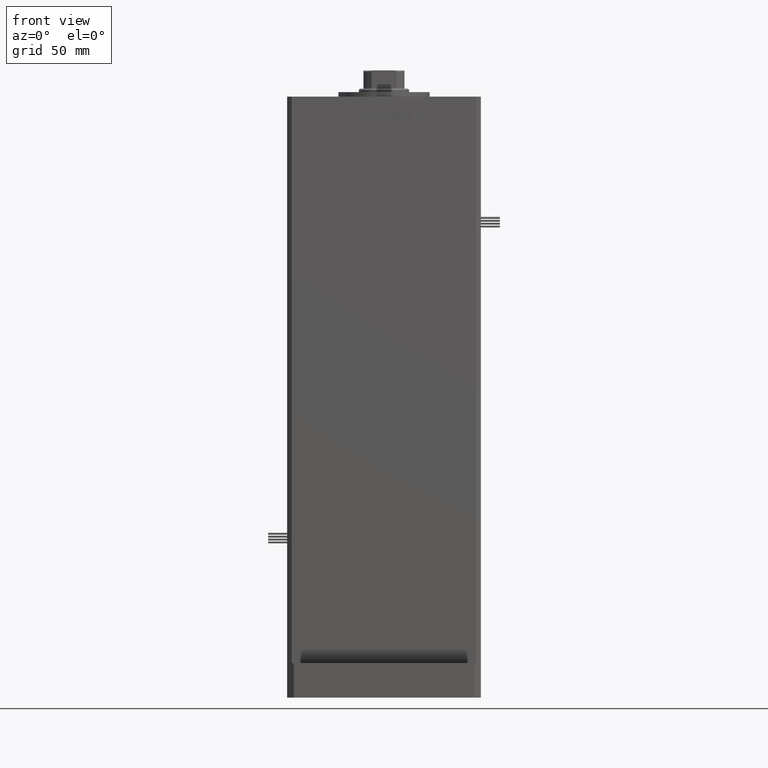
[diagram: clean part render]
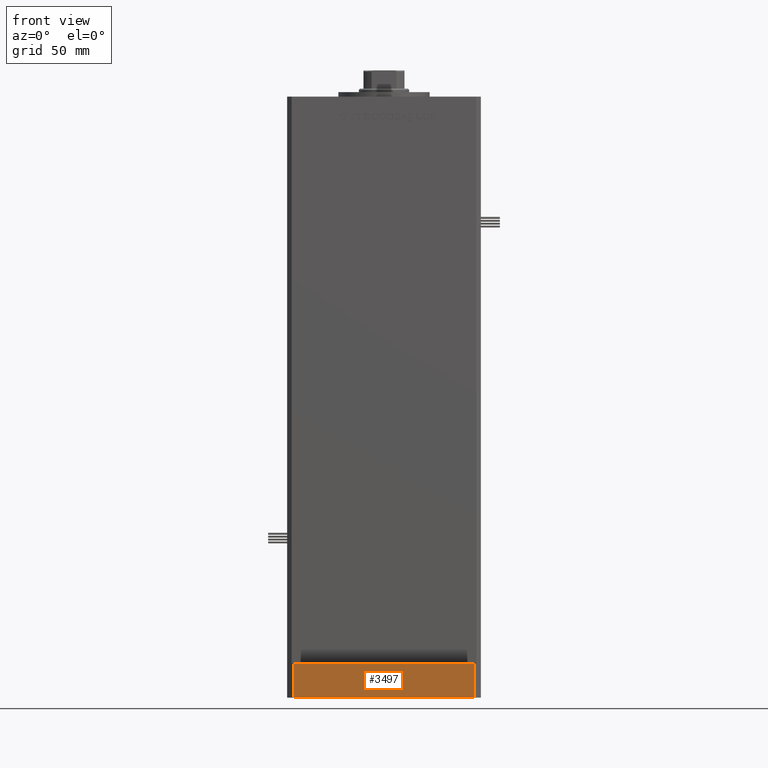
[diagram: same view with one face highlighted and labeled with its STEP entity id]
A machine part, front view. The second image highlights one B-rep face of the part: STEP entity #3497.
In plain terms, the highlighted planar face has unit normal (-0, 1, 0).
Its self-contained STEP definition (entity closure, byte-faithful):
#574 = ORIENTED_EDGE ( 'NONE', *, *, #34893, .T. ) ;
#2150 = LINE ( 'NONE', #14676, #41865 ) ;
#3497 = ADVANCED_FACE ( 'NONE', ( #56154 ), #44179, .F. ) ;
#3578 = VERTEX_POINT ( 'NONE', #39608 ) ;
#4046 = DIRECTION ( 'NONE',  ( -1.000000000000000000, -1.405345600791337191E-15, 0.000000000000000000 ) ) ;
#4849 = CARTESIAN_POINT ( 'NONE',  ( 39.50000000000001421, -64.99999999999988631, 15.00000000000000000 ) ) ;
#5164 = DIRECTION ( 'NONE',  ( -1.405345600791337191E-15, 1.000000000000000000, 0.000000000000000000 ) ) ;
#5642 = CARTESIAN_POINT ( 'NONE',  ( 39.50000000000001421, -64.99999999999988631, 15.00000000000000000 ) ) ;
#6241 = LINE ( 'NONE', #23607, #29953 ) ;
#10055 = EDGE_LOOP ( 'NONE', ( #574, #15299, #45976, #35220 ) ) ;
#11637 = CARTESIAN_POINT ( 'NONE',  ( -39.50000000000000000, -65.00000000000000000, 15.00000000000000000 ) ) ;
#14676 = CARTESIAN_POINT ( 'NONE',  ( -39.50000000000000000, -65.00000000000000000, 15.00000000000000000 ) ) ;
#15299 = ORIENTED_EDGE ( 'NONE', *, *, #32221, .F. ) ;
#16516 = CARTESIAN_POINT ( 'NONE',  ( -39.50000000000000000, -65.00000000000000000, 0.000000000000000000 ) ) ;
#17287 = EDGE_CURVE ( 'NONE', #40301, #43602, #2150, .T. ) ;
#23563 = VECTOR ( 'NONE', #29624, 1000.000000000000000 ) ;
#23607 = CARTESIAN_POINT ( 'NONE',  ( -39.50000000000000000, -65.00000000000000000, 15.00000000000000000 ) ) ;
#24308 = VERTEX_POINT ( 'NONE', #5642 ) ;
#29624 = DIRECTION ( 'NONE',  ( 1.000000000000000000, 1.405345600791337191E-15, 0.000000000000000000 ) ) ;
#29746 = AXIS2_PLACEMENT_3D ( 'NONE', #51598, #5164, #4046 ) ;
#29953 = VECTOR ( 'NONE', #50360, 1000.000000000000000 ) ;
#30739 = LINE ( 'NONE', #4849, #38624 ) ;
#32221 = EDGE_CURVE ( 'NONE', #24308, #3578, #30739, .T. ) ;
#34893 = EDGE_CURVE ( 'NONE', #43602, #3578, #50992, .T. ) ;
#35220 = ORIENTED_EDGE ( 'NONE', *, *, #17287, .T. ) ;
#35757 = DIRECTION ( 'NONE',  ( -0.000000000000000000, -0.000000000000000000, -1.000000000000000000 ) ) ;
#35824 = EDGE_CURVE ( 'NONE', #40301, #24308, #6241, .T. ) ;
#35857 = DIRECTION ( 'NONE',  ( -0.000000000000000000, -0.000000000000000000, -1.000000000000000000 ) ) ;
#38624 = VECTOR ( 'NONE', #35857, 1000.000000000000000 ) ;
#39608 = CARTESIAN_POINT ( 'NONE',  ( 39.50000000000001421, -64.99999999999988631, 0.000000000000000000 ) ) ;
#40301 = VERTEX_POINT ( 'NONE', #11637 ) ;
#40411 = CARTESIAN_POINT ( 'NONE',  ( -39.50000000000000000, -65.00000000000000000, 0.000000000000000000 ) ) ;
#41865 = VECTOR ( 'NONE', #35757, 1000.000000000000000 ) ;
#43602 = VERTEX_POINT ( 'NONE', #40411 ) ;
#44179 = PLANE ( 'NONE',  #29746 ) ;
#45976 = ORIENTED_EDGE ( 'NONE', *, *, #35824, .F. ) ;
#50360 = DIRECTION ( 'NONE',  ( 1.000000000000000000, 1.405345600791337191E-15, 0.000000000000000000 ) ) ;
#50992 = LINE ( 'NONE', #16516, #23563 ) ;
#51598 = CARTESIAN_POINT ( 'NONE',  ( -39.50000000000000000, -65.00000000000000000, 15.00000000000000000 ) ) ;
#56154 = FACE_OUTER_BOUND ( 'NONE', #10055, .T. ) ;